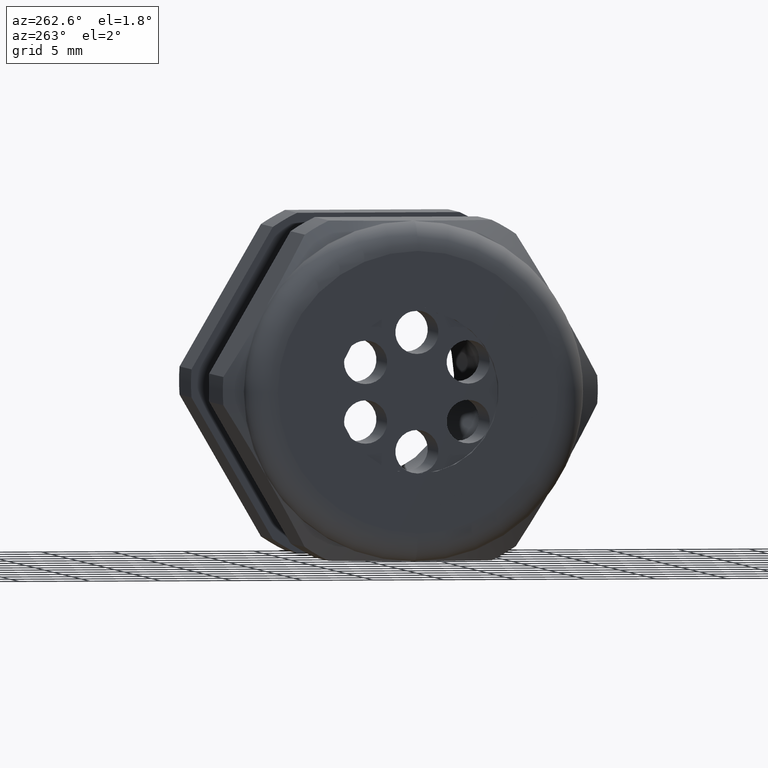
[diagram: clean part render]
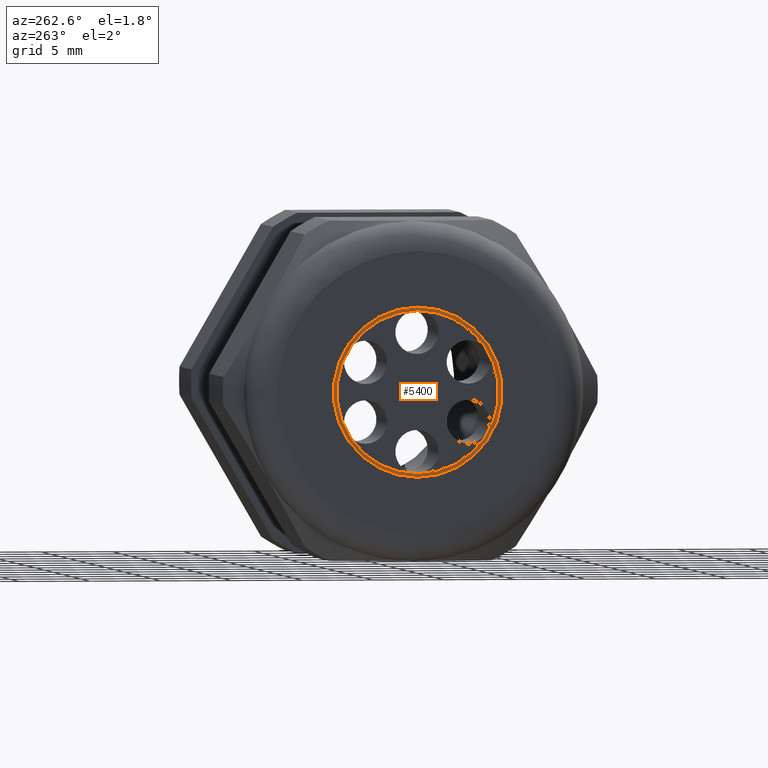
[diagram: same view with one face highlighted and labeled with its STEP entity id]
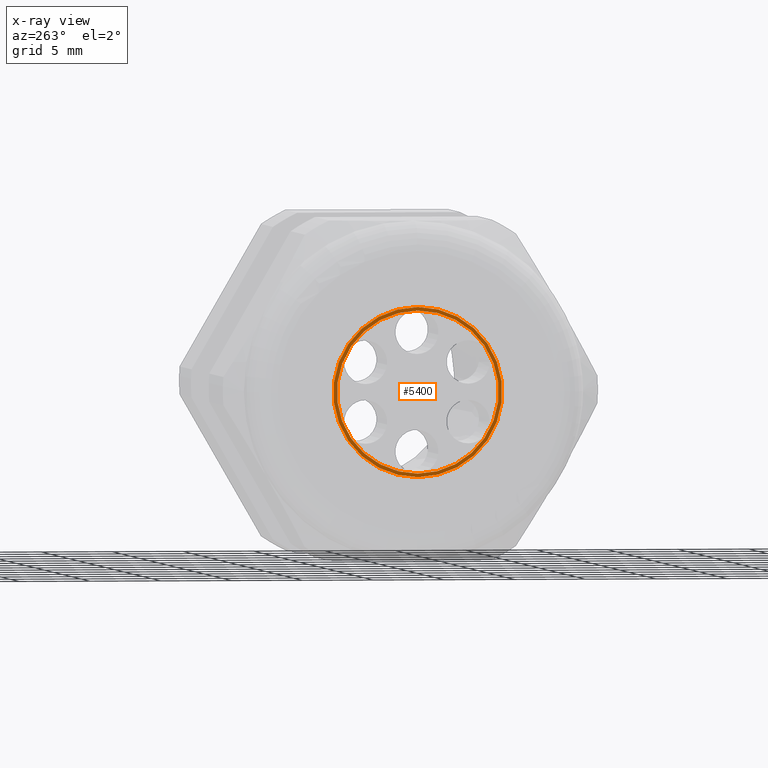
[diagram: x-ray of the same camera — body ghosted, the highlighted face saturated]
A machine part, auxiliary view. The second image highlights one B-rep face of the part: STEP entity #5400.
The next image is the same camera in x-ray: the body ghosted, the highlighted face saturated — about 0% of this face is hidden behind the body in this view.
In plain terms, the highlighted planar face has unit normal (-1, 0, 0).
Its self-contained STEP definition (entity closure, byte-faithful):
#103 = VERTEX_POINT ( 'NONE', #1890 ) ;
#104 = EDGE_CURVE ( 'NONE', #113, #103, #1889, .T. ) ;
#113 = VERTEX_POINT ( 'NONE', #1873 ) ;
#1873 = CARTESIAN_POINT ( 'NONE',  ( -1.409999999999999900, 2.755455298081544500E-017, -0.2249999999999999800 ) ) ;
#1885 = DIRECTION ( 'NONE',  ( 0.0000000000000000000, 0.0000000000000000000, 1.000000000000000000 ) ) ;
#1886 = DIRECTION ( 'NONE',  ( -1.000000000000000000, 0.0000000000000000000, 0.0000000000000000000 ) ) ;
#1887 = CARTESIAN_POINT ( 'NONE',  ( -1.409999999999999900, 0.0000000000000000000, 0.0000000000000000000 ) ) ;
#1888 = AXIS2_PLACEMENT_3D ( 'NONE', #1887, #1886, #1885 ) ;
#1889 = CIRCLE ( 'NONE', #1888, 0.2249999999999999800 ) ;
#1890 = CARTESIAN_POINT ( 'NONE',  ( -1.409999999999999900, 0.0000000000000000000, 0.2249999999999999800 ) ) ;
#4526 = ORIENTED_EDGE ( 'NONE', *, *, #5410, .T. ) ;
#5062 = CARTESIAN_POINT ( 'NONE',  ( -1.409999999999999900, 2.877919977996279800E-017, -0.2349999999999999900 ) ) ;
#5074 = CARTESIAN_POINT ( 'NONE',  ( -1.409999999999999900, 0.0000000000000000000, 0.2349999999999999900 ) ) ;
#5094 = DIRECTION ( 'NONE',  ( 0.0000000000000000000, 0.0000000000000000000, 1.000000000000000000 ) ) ;
#5095 = DIRECTION ( 'NONE',  ( -1.000000000000000000, 0.0000000000000000000, 0.0000000000000000000 ) ) ;
#5096 = CARTESIAN_POINT ( 'NONE',  ( -1.409999999999999900, 0.0000000000000000000, 0.0000000000000000000 ) ) ;
#5097 = AXIS2_PLACEMENT_3D ( 'NONE', #5096, #5095, #5094 ) ;
#5098 = FACE_OUTER_BOUND ( 'NONE', #5411, .T. ) ;
#5099 = FACE_BOUND ( 'NONE', #5394, .T. ) ;
#5104 = PLANE ( 'NONE',  #5097 ) ;
#5126 = DIRECTION ( 'NONE',  ( -1.000000000000000000, 0.0000000000000000000, 0.0000000000000000000 ) ) ;
#5127 = CARTESIAN_POINT ( 'NONE',  ( -1.409999999999999900, 0.0000000000000000000, 0.0000000000000000000 ) ) ;
#5128 = AXIS2_PLACEMENT_3D ( 'NONE', #5127, #5126, #5191 ) ;
#5129 = CIRCLE ( 'NONE', #5128, 0.2349999999999999900 ) ;
#5130 = DIRECTION ( 'NONE',  ( 0.0000000000000000000, 0.0000000000000000000, 1.000000000000000000 ) ) ;
#5131 = DIRECTION ( 'NONE',  ( -1.000000000000000000, 0.0000000000000000000, 0.0000000000000000000 ) ) ;
#5132 = CARTESIAN_POINT ( 'NONE',  ( -1.409999999999999900, 0.0000000000000000000, 0.0000000000000000000 ) ) ;
#5133 = AXIS2_PLACEMENT_3D ( 'NONE', #5132, #5131, #5130 ) ;
#5134 = CIRCLE ( 'NONE', #5133, 0.2249999999999999800 ) ;
#5139 = DIRECTION ( 'NONE',  ( 0.0000000000000000000, 0.0000000000000000000, 1.000000000000000000 ) ) ;
#5140 = DIRECTION ( 'NONE',  ( -1.000000000000000000, 0.0000000000000000000, 0.0000000000000000000 ) ) ;
#5141 = CARTESIAN_POINT ( 'NONE',  ( -1.409999999999999900, 0.0000000000000000000, 0.0000000000000000000 ) ) ;
#5142 = AXIS2_PLACEMENT_3D ( 'NONE', #5141, #5140, #5139 ) ;
#5143 = CIRCLE ( 'NONE', #5142, 0.2349999999999999900 ) ;
#5191 = DIRECTION ( 'NONE',  ( 0.0000000000000000000, 0.0000000000000000000, 1.000000000000000000 ) ) ;
#5375 = ORIENTED_EDGE ( 'NONE', *, *, #104, .F. ) ;
#5376 = VERTEX_POINT ( 'NONE', #5074 ) ;
#5387 = VERTEX_POINT ( 'NONE', #5062 ) ;
#5394 = EDGE_LOOP ( 'NONE', ( #5398, #5375 ) ) ;
#5398 = ORIENTED_EDGE ( 'NONE', *, *, #5415, .F. ) ;
#5400 = ADVANCED_FACE ( 'NONE', ( #5099, #5098 ), #5104, .T. ) ;
#5409 = ORIENTED_EDGE ( 'NONE', *, *, #5417, .T. ) ;
#5410 = EDGE_CURVE ( 'NONE', #5387, #5376, #5143, .T. ) ;
#5411 = EDGE_LOOP ( 'NONE', ( #5409, #4526 ) ) ;
#5415 = EDGE_CURVE ( 'NONE', #103, #113, #5134, .T. ) ;
#5417 = EDGE_CURVE ( 'NONE', #5376, #5387, #5129, .T. ) ;